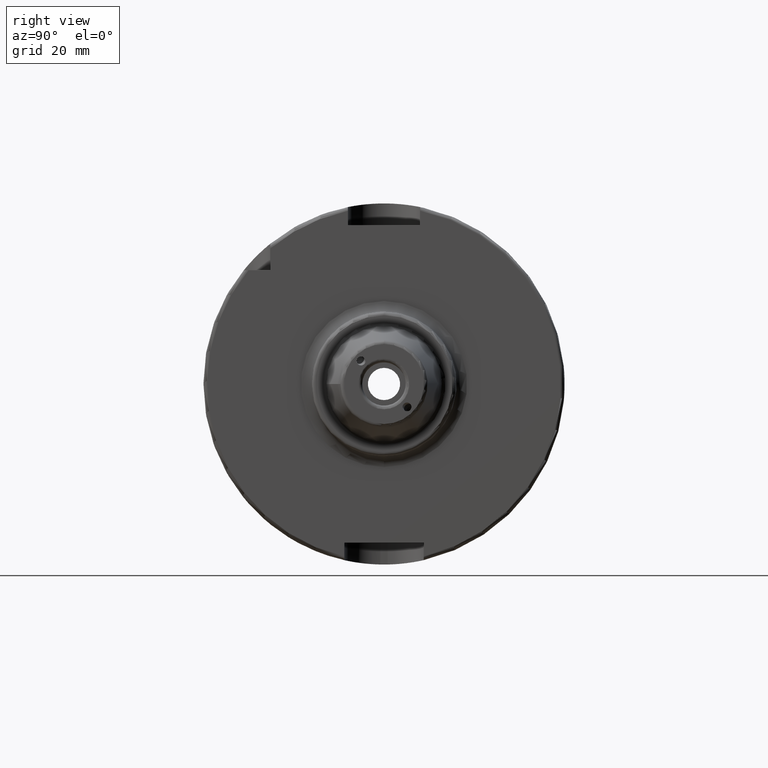
[diagram: clean part render]
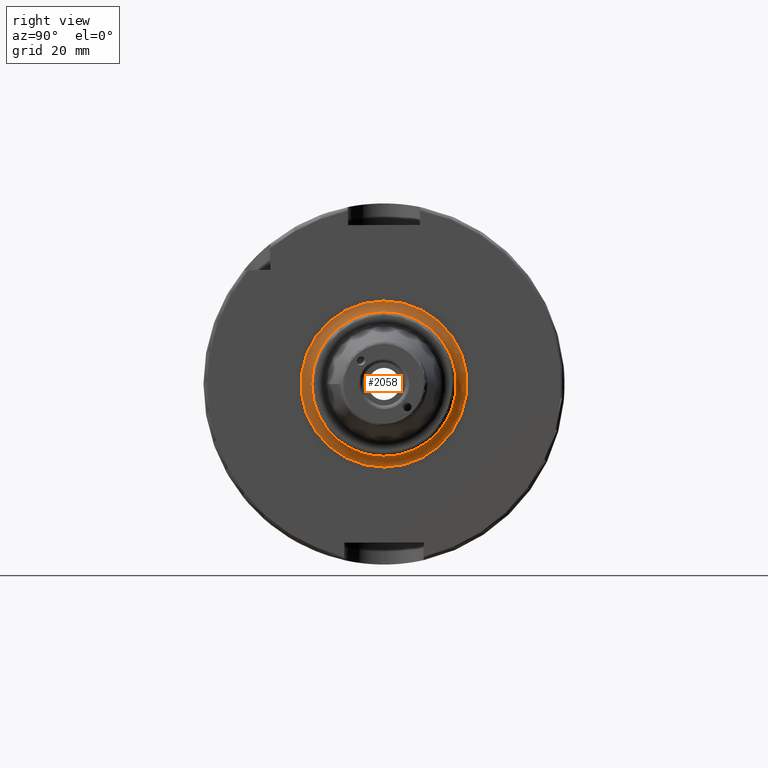
[diagram: same view with one face highlighted and labeled with its STEP entity id]
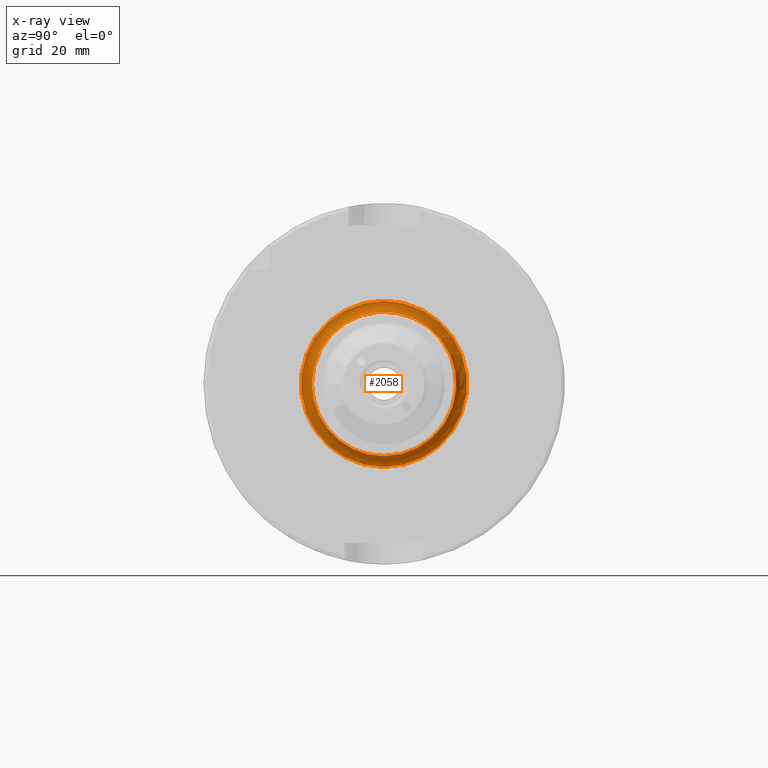
[diagram: x-ray of the same camera — body ghosted, the highlighted face saturated]
A machine part, right view. The second image highlights one B-rep face of the part: STEP entity #2058.
The next image is the same camera in x-ray: the body ghosted, the highlighted face saturated — about 0% of this face is hidden behind the body in this view.
In plain terms, the highlighted toroidal blend (fillet) surface has major radius 23 mm and minor (blend) radius 3 mm.
Its self-contained STEP definition (entity closure, byte-faithful):
#142=TOROIDAL_SURFACE('',#2229,23.,3.);
#228=FACE_OUTER_BOUND('',#356,.T.);
#356=EDGE_LOOP('',(#1434,#1435,#1436,#1437,#1438));
#703=CIRCLE('',#2213,20.);
#704=CIRCLE('',#2214,20.);
#714=CIRCLE('',#2230,3.);
#715=CIRCLE('',#2231,23.);
#846=VERTEX_POINT('',#3161);
#847=VERTEX_POINT('',#3163);
#855=VERTEX_POINT('',#3190);
#1065=EDGE_CURVE('',#847,#846,#703,.T.);
#1066=EDGE_CURVE('',#846,#847,#704,.T.);
#1078=EDGE_CURVE('',#847,#855,#714,.T.);
#1079=EDGE_CURVE('',#855,#855,#715,.T.);
#1434=ORIENTED_EDGE('',*,*,#1066,.T.);
#1435=ORIENTED_EDGE('',*,*,#1078,.T.);
#1436=ORIENTED_EDGE('',*,*,#1079,.T.);
#1437=ORIENTED_EDGE('',*,*,#1078,.F.);
#1438=ORIENTED_EDGE('',*,*,#1065,.T.);
#2058=ADVANCED_FACE('',(#228),#142,.F.);
#2213=AXIS2_PLACEMENT_3D('',#3164,#2516,#2517);
#2214=AXIS2_PLACEMENT_3D('',#3165,#2518,#2519);
#2229=AXIS2_PLACEMENT_3D('',#3189,#2550,#2551);
#2230=AXIS2_PLACEMENT_3D('',#3191,#2552,#2553);
#2231=AXIS2_PLACEMENT_3D('',#3192,#2554,#2555);
#2516=DIRECTION('center_axis',(-1.,0.,0.));
#2517=DIRECTION('ref_axis',(0.,-1.,-1.22464679914735E-16));
#2518=DIRECTION('center_axis',(-1.,0.,0.));
#2519=DIRECTION('ref_axis',(0.,-1.,-1.22464679914735E-16));
#2550=DIRECTION('center_axis',(-1.,0.,0.));
#2551=DIRECTION('ref_axis',(0.,0.,1.));
#2552=DIRECTION('center_axis',(0.,-1.,1.22464679914735E-16));
#2553=DIRECTION('ref_axis',(0.,-1.22464679914735E-16,-1.));
#2554=DIRECTION('center_axis',(1.,0.,0.));
#2555=DIRECTION('ref_axis',(0.,-1.,-1.22464679914735E-16));
#3161=CARTESIAN_POINT('',(32.,-20.,-2.44929359829471E-15));
#3163=CARTESIAN_POINT('',(32.,-2.44929359829471E-15,-20.));
#3164=CARTESIAN_POINT('Origin',(32.,0.,0.));
#3165=CARTESIAN_POINT('Origin',(32.,0.,0.));
#3189=CARTESIAN_POINT('Origin',(32.,0.,0.));
#3190=CARTESIAN_POINT('',(29.,-2.81668763803891E-15,-23.));
#3191=CARTESIAN_POINT('Origin',(32.,-2.81668763803891E-15,-23.));
#3192=CARTESIAN_POINT('Origin',(29.,0.,0.));